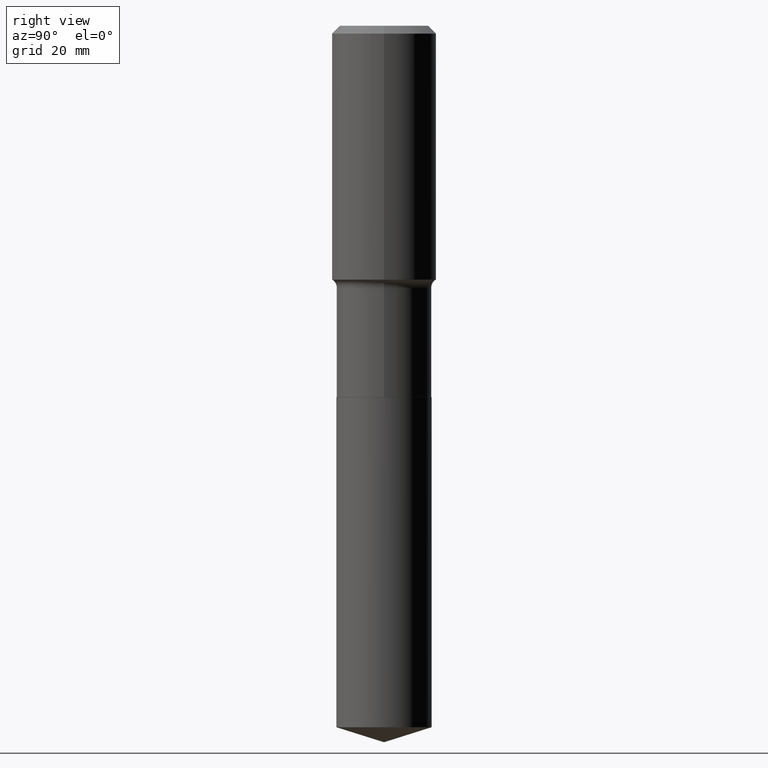
[diagram: clean part render]
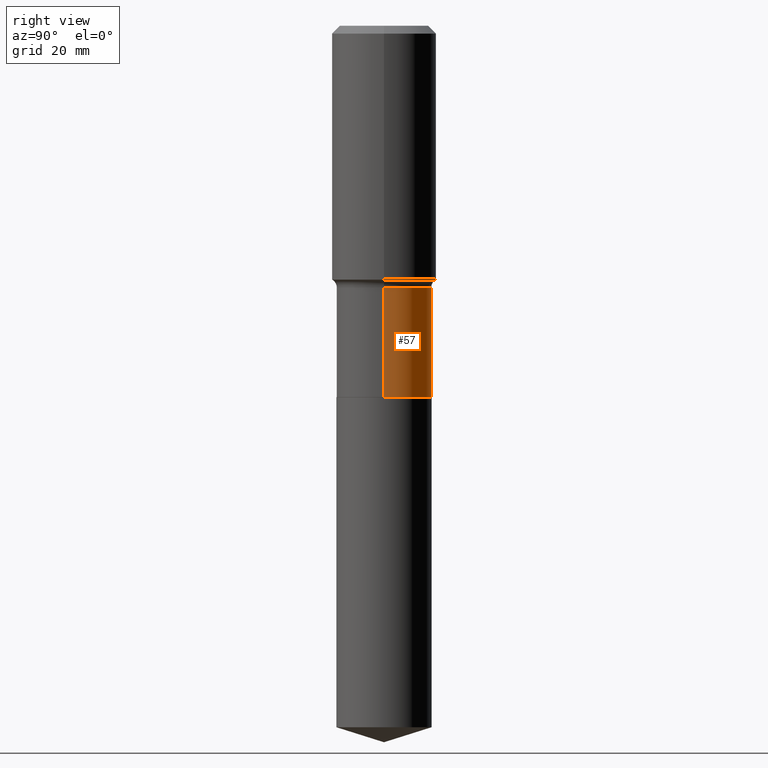
[diagram: same view with one face highlighted and labeled with its STEP entity id]
A machine part, right view. The second image highlights one B-rep face of the part: STEP entity #57.
In plain terms, the highlighted cylindrical surface (partial cylindrical patch) has radius 10.1206 mm, axis along (-0, 0, 1).
Its self-contained STEP definition (entity closure, byte-faithful):
#18 = ORIENTED_EDGE ( 'NONE', *, *, #395, .F. ) ;
#24 = CIRCLE ( 'NONE', #309, 0.3984499999999998598 ) ;
#28 = DIRECTION ( 'NONE',  ( 1.000000000000000000, -6.982962677686265922E-15, 4.876176775795935793E-29 ) ) ;
#29 = ORIENTED_EDGE ( 'NONE', *, *, #296, .T. ) ;
#45 = CARTESIAN_POINT ( 'NONE',  ( 0.3984499999999998598, -1.043918005500711173E-14, -2.193000000000000504 ) ) ;
#55 = CARTESIAN_POINT ( 'NONE',  ( 7.602717971548972402E-29, -1.085466633432945640E-14, -3.108900000000000219 ) ) ;
#57 = ADVANCED_FACE ( 'NONE', ( #78 ), #308, .T. ) ;
#59 = DIRECTION ( 'NONE',  ( -2.445468806185136597E-29, 3.491481338843145583E-15, 1.000000000000000000 ) ) ;
#78 = FACE_OUTER_BOUND ( 'NONE', #444, .T. ) ;
#83 = CARTESIAN_POINT ( 'NONE',  ( 0.000000000000000000, 0.000000000000000000, 0.000000000000000000 ) ) ;
#88 = CARTESIAN_POINT ( 'NONE',  ( -0.3984500000000001374, -6.424584924570118002E-15, -3.108900000000000219 ) ) ;
#90 = AXIS2_PLACEMENT_3D ( 'NONE', #83, #152, #28 ) ;
#105 = VERTEX_POINT ( 'NONE', #414 ) ;
#107 = ORIENTED_EDGE ( 'NONE', *, *, #451, .F. ) ;
#110 = CARTESIAN_POINT ( 'NONE',  ( 5.362913091964004880E-29, -7.656818576083019153E-15, -2.193000000000000504 ) ) ;
#126 = CARTESIAN_POINT ( 'NONE',  ( 0.3984499999999999709, -2.782361478924092573E-15, 1.942912636315890449E-29 ) ) ;
#127 = VERTEX_POINT ( 'NONE', #158 ) ;
#144 = ORIENTED_EDGE ( 'NONE', *, *, #265, .T. ) ;
#149 = LINE ( 'NONE', #192, #278 ) ;
#152 = DIRECTION ( 'NONE',  ( -2.445468806185136597E-29, 3.491481338843145583E-15, 1.000000000000000000 ) ) ;
#158 = CARTESIAN_POINT ( 'NONE',  ( -0.3984499999999998598, -6.424584924570119580E-15, -2.193000000000000504 ) ) ;
#167 = LINE ( 'NONE', #126, #234 ) ;
#192 = CARTESIAN_POINT ( 'NONE',  ( -0.3984499999999999709, 2.831157530636118984E-15, -1.959949686712066901E-29 ) ) ;
#205 = DIRECTION ( 'NONE',  ( -2.445468806185136877E-29, 3.491481338843145188E-15, 1.000000000000000000 ) ) ;
#215 = DIRECTION ( 'NONE',  ( 1.000000000000000000, -6.982962677686268288E-15, 0.000000000000000000 ) ) ;
#234 = VECTOR ( 'NONE', #205, 39.37007874015748143 ) ;
#246 = AXIS2_PLACEMENT_3D ( 'NONE', #55, #59, #215 ) ;
#265 = EDGE_CURVE ( 'NONE', #105, #458, #460, .T. ) ;
#278 = VECTOR ( 'NONE', #453, 39.37007874015748143 ) ;
#296 = EDGE_CURVE ( 'NONE', #458, #127, #149, .T. ) ;
#305 = DIRECTION ( 'NONE',  ( 1.000000000000000000, -6.982962677686265133E-15, 0.000000000000000000 ) ) ;
#308 = CYLINDRICAL_SURFACE ( 'NONE', #90, 0.3984499999999999709 ) ;
#309 = AXIS2_PLACEMENT_3D ( 'NONE', #110, #490, #305 ) ;
#395 = EDGE_CURVE ( 'NONE', #441, #127, #24, .T. ) ;
#414 = CARTESIAN_POINT ( 'NONE',  ( 0.3984500000000000819, -1.363702781325355055E-14, -3.108900000000000219 ) ) ;
#441 = VERTEX_POINT ( 'NONE', #45 ) ;
#444 = EDGE_LOOP ( 'NONE', ( #144, #29, #18, #107 ) ) ;
#451 = EDGE_CURVE ( 'NONE', #105, #441, #167, .T. ) ;
#453 = DIRECTION ( 'NONE',  ( -2.445468806185136877E-29, 3.491481338843145188E-15, 1.000000000000000000 ) ) ;
#458 = VERTEX_POINT ( 'NONE', #88 ) ;
#460 = CIRCLE ( 'NONE', #246, 0.3984500000000000819 ) ;
#490 = DIRECTION ( 'NONE',  ( -2.445468806185136597E-29, 3.491481338843145583E-15, 1.000000000000000000 ) ) ;